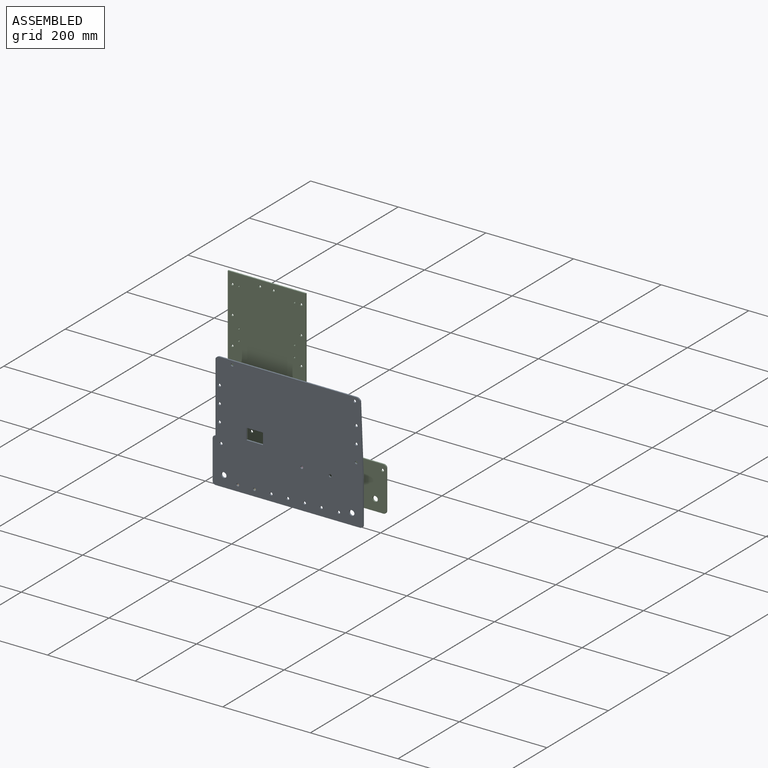
[diagram: assembled view]
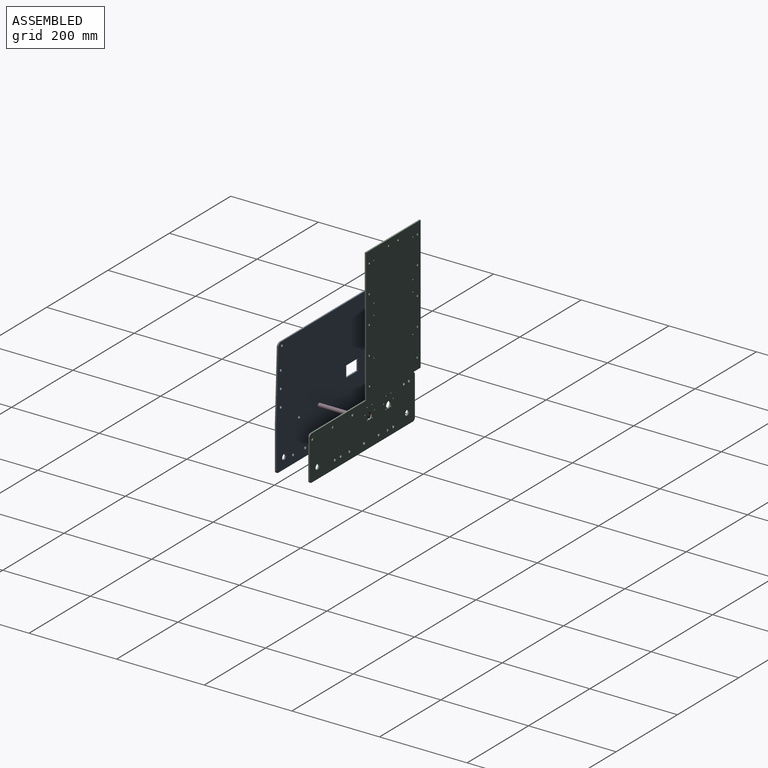
[diagram: assembled view, second angle]
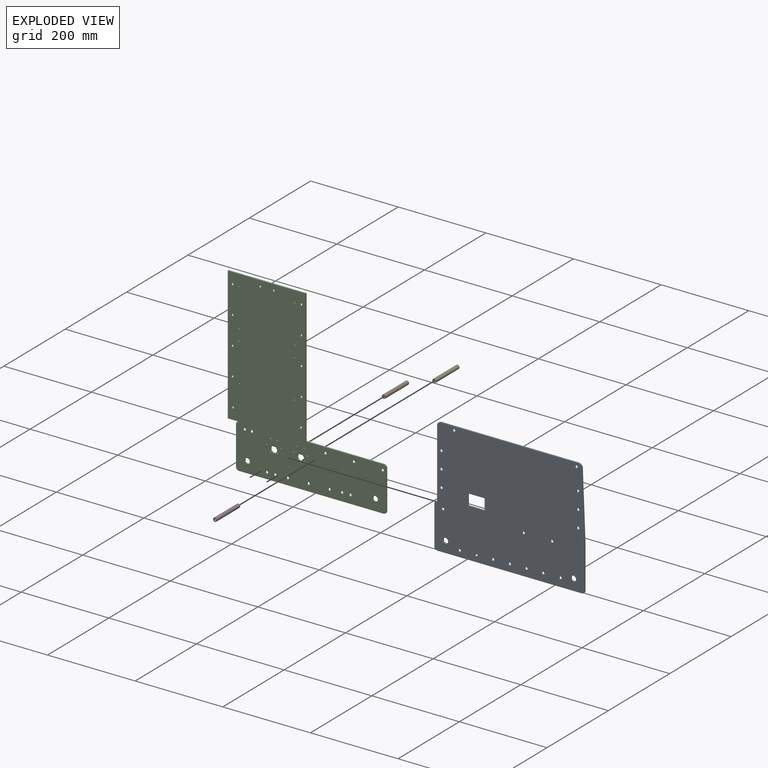
[diagram: exploded view]
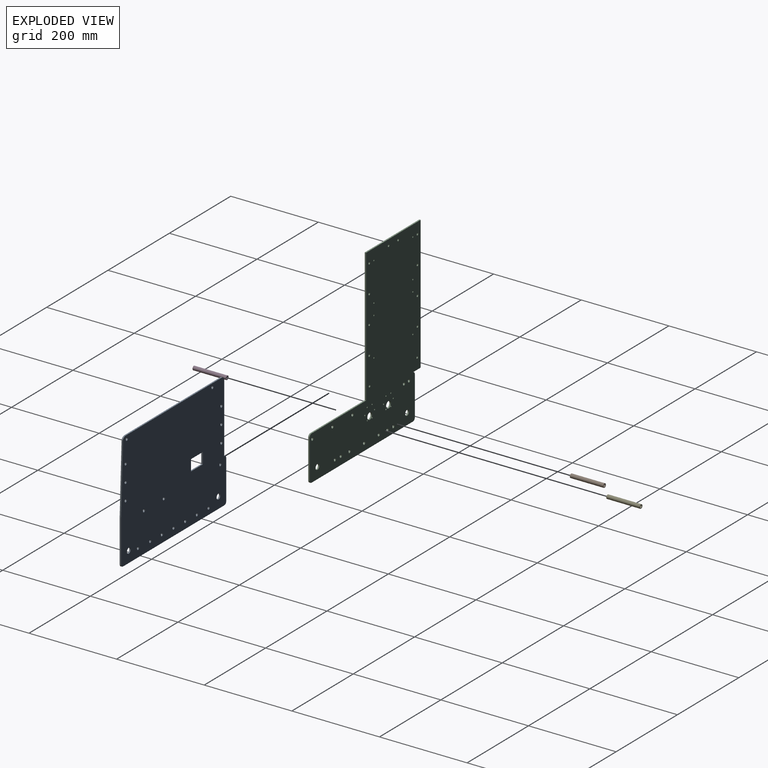
[diagram: exploded view, second angle]
ASSEMBLY  parts=5 mates=2
PART A: 38 faces, bbox 342.9x266.7x3.2 mm
  f0: plane 342.9x266.7mm, normal (0,0,1), area 88047.5mm2, adj f2,f3,f4,f5,f6,f7,f8,f9
  f1: plane 342.9x266.7mm, normal (0,0,-1), area 88047.5mm2, adj f2,f3,f4,f5,f6,f7,f8,f9
  f2: plane 159.46x3.18mm, normal (-1,0,0), area 506.3mm2, adj f0,f1,f7,f17
  f3: plane 312.17x3.18mm, normal (0,1,0), area 991.1mm2, adj f0,f1,f17,f20
  f4: plane 96.52x3.18mm, normal (1,0,0), area 306.4mm2, adj f0,f1,f9,f37
  f5: plane 88.9x3.18mm, normal (-1,0,0), area 282.3mm2, adj f0,f1,f7,f8
  f6: plane 330.2x3.18mm, normal (0,-1,0), area 1048.4mm2, adj f0,f1,f8,f9
  f7: cylinder r=6.35mm len=6.35mm, axis (0,0,1), area 31.7mm2, adj f0,f1,f2,f5
  f8: cylinder r=6.35mm len=6.35mm, axis (0,0,1), area 31.7mm2, adj f0,f1,f5,f6
  f9: cylinder r=6.35mm len=6.35mm, axis (0,0,1), area 31.7mm2, adj f0,f1,f4,f6
  f10: cylinder r=6mm len=12mm, axis (0,0,1), area 119.7mm2, adj f0,f1
  f11: cylinder r=6mm len=12mm, axis (0,0,1), area 119.7mm2, adj f0,f1
  f12: cylinder r=3.17mm len=6.35mm, axis (0,0,1), area 63.3mm2, adj f0,f1
  f13: cylinder r=3.17mm len=6.35mm, axis (0,0,1), area 63.3mm2, adj f0,f1
  f14: cylinder r=3.17mm len=6.35mm, axis (0,0,1), area 63.3mm2, adj f0,f1
  f15: cylinder r=3.17mm len=6.35mm, axis (0,0,1), area 63.3mm2, adj f0,f1
  f16: cylinder r=3.17mm len=6.35mm, axis (0,0,1), area 63.3mm2, adj f0,f1
  f17: cylinder r=10.03mm len=9.02mm, axis (0,0,1), area 35.6mm2, adj f0,f1,f2,f3
  f18: cylinder r=3.17mm len=6.35mm, axis (0,0,1), area 63.3mm2, adj f0,f1
  f19: cylinder r=3.17mm len=6.35mm, axis (0,0,1), area 63.3mm2, adj f0,f1
  f20: cylinder r=10.03mm len=9.02mm, axis (0,0,1), area 35.6mm2, adj f0,f1,f3,f31
  f21: cylinder r=3.17mm len=6.35mm, axis (0,0,1), area 63.3mm2, adj f0,f1
  f22: cylinder r=3.17mm len=6.35mm, axis (0,0,1), area 63.3mm2, adj f0,f1
  f23: cylinder r=3.17mm len=6.35mm, axis (0,0,1), area 63.3mm2, adj f0,f1
  f24: cylinder r=3.17mm len=6.35mm, axis (0,0,1), area 63.3mm2, adj f0,f1
  f25: cylinder r=3.17mm len=6.35mm, axis (0,0,1), area 63.3mm2, adj f0,f1
  f26: cylinder r=3.17mm len=6.35mm, axis (0,0,1), area 63.3mm2, adj f0,f1
  f27: plane 25.4x3.18mm, normal (-1,0,0), area 80.6mm2, adj f0,f1,f28,f30
  f28: plane 38.1x3.18mm, normal (0,-1,0), area 121mm2, adj f0,f1,f27,f29
  f29: plane 25.4x3.18mm, normal (1,0,0), area 80.6mm2, adj f0,f1,f28,f30
  f30: plane 38.1x3.18mm, normal (0,1,0), area 121mm2, adj f0,f1,f27,f29
  f31: plane 3.18x0.02mm, normal (0,1,0), area 0.1mm2, adj f0,f1,f20,f37
  f32: cylinder r=3.17mm len=6.35mm, axis (0,0,1), area 63.3mm2, adj f0,f1
  f33: cylinder r=3.17mm len=6.35mm, axis (0,0,1), area 63.3mm2, adj f0,f1
  f34: cylinder r=3.17mm len=6.35mm, axis (0,0,1), area 63.3mm2, adj f0,f1
  f35: cylinder r=3.17mm len=6.35mm, axis (0,0,1), area 63.3mm2, adj f0,f1
  f36: cylinder r=3.17mm len=6.35mm, axis (0,0,1), area 63.3mm2, adj f0,f1
  f37: plane 158.2x6.33mm, normal (1,0.04,0), area 502.7mm2, adj f0,f1,f4,f31
PART B: 4 faces, bbox 8.9x8.9x76.2 mm
  f0: cylinder r=3.17mm len=76.2mm, axis (0,0,-1), area 1520.1mm2, adj f2,f3
  f1: cylinder r=4.45mm len=76.2mm, axis (0,0,-1), area 2128.2mm2, adj f2,f3
  f2: plane 8.89x8.89mm, normal (0,0,1), area 30.4mm2, adj f0,f1
  f3: plane 8.89x8.89mm, normal (0,0,-1), area 30.4mm2, adj f0,f1
PART C: 62 faces, bbox 362x406.4x3.2 mm
  f0: plane 406.4x361.95mm, normal (0,0,1), area 87630.8mm2, adj f2,f3,f4,f5,f6,f7,f8,f9
  f1: plane 406.4x361.95mm, normal (0,0,-1), area 87630.8mm2, adj f2,f3,f4,f5,f6,f7,f8,f9
  f2: plane 177.8x3.18mm, normal (0,1,0), area 564.5mm2, adj f0,f1,f37,f51
  f3: plane 88.9x3.18mm, normal (1,0,0), area 282.3mm2, adj f0,f1,f8,f9
  f4: plane 88.9x3.18mm, normal (-1,0,0), area 282.3mm2, adj f0,f1,f6,f7
  f5: plane 330.2x3.18mm, normal (0,-1,0), area 1048.4mm2, adj f0,f1,f7,f8
  f6: cylinder r=6.35mm len=6.35mm, axis (0,0,1), area 31.7mm2, adj f0,f1,f4,f36
  f7: cylinder r=6.35mm len=6.35mm, axis (0,0,1), area 31.7mm2, adj f0,f1,f4,f5
  f8: cylinder r=6.35mm len=6.35mm, axis (0,0,1), area 31.7mm2, adj f0,f1,f3,f5
  f9: cylinder r=6.35mm len=6.35mm, axis (0,0,1), area 31.7mm2, adj f0,f1,f3,f50
  f10: cylinder r=6mm len=12mm, axis (0,0,1), area 119.7mm2, adj f0,f1
  f11: cylinder r=6mm len=12mm, axis (0,0,1), area 119.7mm2, adj f0,f1
  f12: cylinder r=3.17mm len=6.35mm, axis (0,0,1), area 63.3mm2, adj f0,f1
  f13: cylinder r=3.17mm len=6.35mm, axis (0,0,1), area 63.3mm2, adj f0,f1
  f14: cylinder r=3.17mm len=6.35mm, axis (0,0,1), area 63.3mm2, adj f0,f1
  f15: cylinder r=3.17mm len=6.35mm, axis (0,0,1), area 63.3mm2, adj f0,f1
  f16: cylinder r=3.17mm len=6.35mm, axis (0,0,1), area 63.3mm2, adj f0,f1
  f17: cylinder r=3.17mm len=6.35mm, axis (0,0,1), area 63.3mm2, adj f0,f1
  f18: cylinder r=3.17mm len=6.35mm, axis (0,0,1), area 63.3mm2, adj f0,f1
  f19: cylinder r=3.17mm len=6.35mm, axis (0,0,1), area 63.3mm2, adj f0,f1
  f20: cylinder r=3.17mm len=6.35mm, axis (0,0,1), area 63.3mm2, adj f0,f1
  f21: cylinder r=3.17mm len=6.35mm, axis (0,0,1), area 63.3mm2, adj f0,f1
  f22: cylinder r=7.51mm len=15.01mm, axis (0,0,1), area 149.7mm2, adj f0,f1
  f23: cylinder r=7.5mm len=15mm, axis (0,0,1), area 149.6mm2, adj f0,f1
  f24: cylinder r=1.59mm len=3.18mm, axis (0,0,1), area 31.7mm2, adj f0,f1
  f25: cylinder r=1.59mm len=3.18mm, axis (0,0,1), area 31.7mm2, adj f0,f1
  f26: cylinder r=1.59mm len=3.18mm, axis (0,0,1), area 31.7mm2, adj f0,f1
  f27: cylinder r=1.59mm len=3.18mm, axis (0,0,1), area 31.7mm2, adj f0,f1
  f28: cylinder r=1.59mm len=3.18mm, axis (0,0,1), area 31.7mm2, adj f0,f1
  f29: cylinder r=1.59mm len=3.18mm, axis (0,0,1), area 31.7mm2, adj f0,f1
  f30: cylinder r=1.59mm len=3.18mm, axis (0,0,1), area 31.7mm2, adj f0,f1
  f31: cylinder r=1.59mm len=3.18mm, axis (0,0,1), area 31.7mm2, adj f0,f1
  f32: cylinder r=1.59mm len=3.18mm, axis (0,0,1), area 31.7mm2, adj f0,f1
  f33: cylinder r=1.59mm len=3.18mm, axis (0,0,1), area 31.7mm2, adj f0,f1
  f34: cylinder r=1.59mm len=3.18mm, axis (0,0,1), area 31.7mm2, adj f0,f1
  f35: cylinder r=1.59mm len=3.18mm, axis (0,0,1), area 31.7mm2, adj f0,f1
  f36: plane 25.4x3.18mm, normal (0,-1,0), area 80.6mm2, adj f0,f1,f6,f37
  f37: plane 304.8x3.18mm, normal (-1,0,0), area 967.7mm2, adj f0,f1,f2,f36
  f38: cylinder r=1.65mm len=3.3mm, axis (0,0,1), area 32.9mm2, adj f0,f1
  f39: cylinder r=2.54mm len=5.08mm, axis (0,0,1), area 50.7mm2, adj f0,f1
  f40: cylinder r=1.65mm len=3.3mm, axis (0,0,1), area 32.9mm2, adj f0,f1
  f41: cylinder r=1.65mm len=3.3mm, axis (0,0,1), area 32.9mm2, adj f0,f1
  f42: cylinder r=1.65mm len=3.3mm, axis (0,0,1), area 32.9mm2, adj f0,f1
  f43: cylinder r=1.65mm len=3.3mm, axis (0,0,1), area 32.9mm2, adj f0,f1
  f44: cylinder r=1.65mm len=3.3mm, axis (0,0,1), area 32.9mm2, adj f0,f1
  f45: cylinder r=1.65mm len=3.3mm, axis (0,0,1), area 32.9mm2, adj f0,f1
  f46: cylinder r=1.65mm len=3.3mm, axis (0,0,1), area 32.9mm2, adj f0,f1
  f47: cylinder r=2.54mm len=5.08mm, axis (0,0,1), area 50.7mm2, adj f0,f1
  f48: cylinder r=3.17mm len=6.35mm, axis (0,0,1), area 63.3mm2, adj f0,f1
  f49: cylinder r=3.17mm len=6.35mm, axis (0,0,1), area 63.3mm2, adj f0,f1
  f50: plane 177.8x3.18mm, normal (0,1,0), area 564.5mm2, adj f0,f1,f9,f51
  f51: plane 304.8x3.18mm, normal (1,0,0), area 967.7mm2, adj f0,f1,f2,f50
  f52: cylinder r=2.54mm len=5.08mm, axis (0,0,1), area 50.7mm2, adj f0,f1
  f53: cylinder r=2.54mm len=5.08mm, axis (0,0,1), area 50.7mm2, adj f0,f1
  f54: cylinder r=2.54mm len=5.08mm, axis (0,0,1), area 50.7mm2, adj f0,f1
  f55: cylinder r=2.54mm len=5.08mm, axis (0,0,1), area 50.7mm2, adj f0,f1
  f56: cylinder r=2.54mm len=5.08mm, axis (0,0,1), area 50.7mm2, adj f0,f1
  f57: cylinder r=2.54mm len=5.08mm, axis (0,0,1), area 50.7mm2, adj f0,f1
  f58: cylinder r=2.54mm len=5.08mm, axis (0,0,1), area 50.7mm2, adj f0,f1
  f59: cylinder r=2.54mm len=5.08mm, axis (0,0,1), area 50.7mm2, adj f0,f1
  f60: cylinder r=2.54mm len=5.08mm, axis (0,0,1), area 50.7mm2, adj f0,f1
  f61: cylinder r=2.54mm len=5.08mm, axis (0,0,1), area 50.7mm2, adj f0,f1
PART D: same geometry as B
PART E: same geometry as B
PLACE A rot(axis=(1,0,0),90deg) t=(0.99,-15.02,19.84)mm
PLACE B rot(axis=(1,0,0),90deg) t=(-63.09,61.18,-34.57)mm
PLACE C rot(axis=(1,0,0),90deg) t=(0.99,61.18,19.84)mm
PLACE D rot(axis=(0.58,-0.58,0.58),120deg) t=(50.15,61.18,108.17)mm
PLACE E rot(axis=(1,0,0),90deg) t=(-24.99,61.18,-33.75)mm
MATE cylindrical E.f0 <-> A.f16  axis (0,-1,0) through (-75.21,-15.02,-16.34)mm
MATE cylindrical B.f0 <-> A.f15  axis (0,-1,0) through (-113.31,-15.02,-17.16)mm
